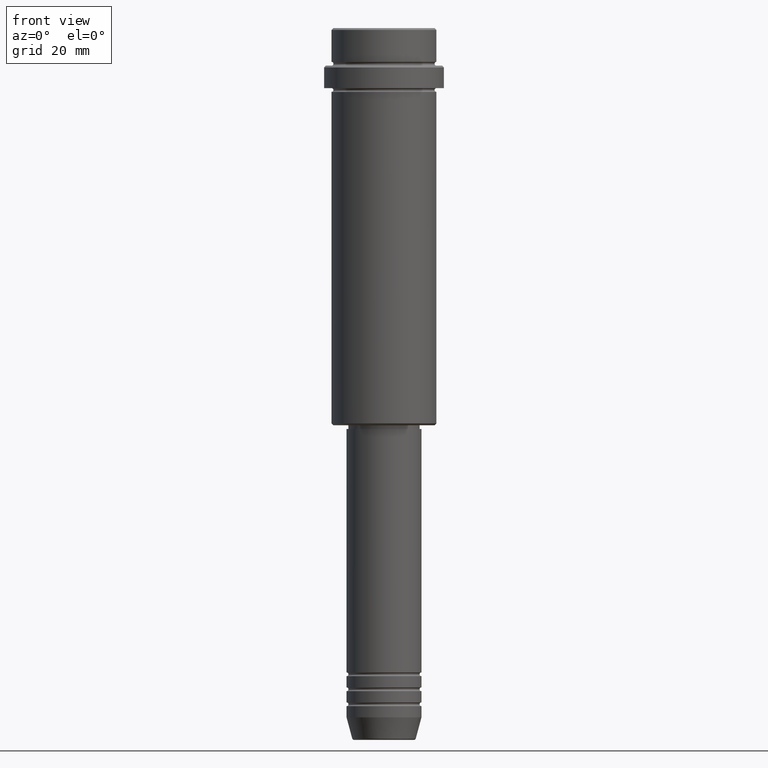
[diagram: clean part render]
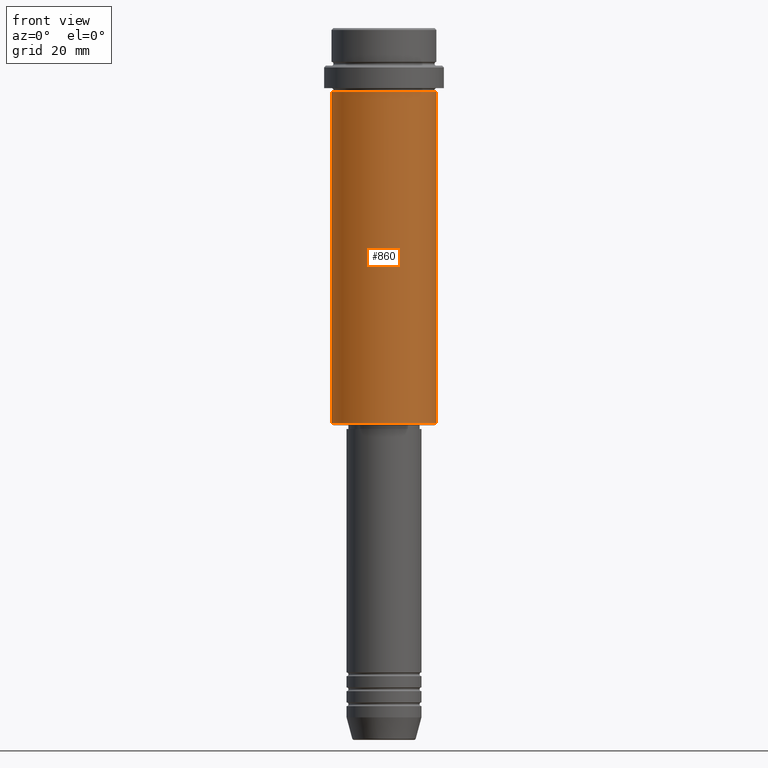
[diagram: same view with one face highlighted and labeled with its STEP entity id]
A machine part, front view. The second image highlights one B-rep face of the part: STEP entity #860.
In plain terms, the highlighted cylindrical surface (partial cylindrical patch) has radius 14 mm, axis along (-0, -0, 1).
Its self-contained STEP definition (entity closure, byte-faithful):
#10 = AXIS2_PLACEMENT_3D ( 'NONE', #302, #505, #203 ) ;
#25 = EDGE_CURVE ( 'NONE', #506, #144, #988, .T. ) ;
#55 = CIRCLE ( 'NONE', #402, 13.99999999999998757 ) ;
#120 = CARTESIAN_POINT ( 'NONE',  ( -13.99999999999997513, 1.714505518806292271E-15, -17.00000000000000355 ) ) ;
#136 = EDGE_CURVE ( 'NONE', #785, #144, #383, .T. ) ;
#144 = VERTEX_POINT ( 'NONE', #1156 ) ;
#178 = CARTESIAN_POINT ( 'NONE',  ( 0.000000000000000000, 0.000000000000000000, -17.00000000000000355 ) ) ;
#191 = DIRECTION ( 'NONE',  ( -0.000000000000000000, -0.000000000000000000, 1.000000000000000000 ) ) ;
#203 = DIRECTION ( 'NONE',  ( 1.000000000000000000, 0.000000000000000000, 0.000000000000000000 ) ) ;
#214 = EDGE_LOOP ( 'NONE', ( #1280, #592, #451, #741 ) ) ;
#225 = CARTESIAN_POINT ( 'NONE',  ( 0.000000000000000000, 0.000000000000000000, -105.4999999999999574 ) ) ;
#243 = VECTOR ( 'NONE', #658, 1000.000000000000000 ) ;
#302 = CARTESIAN_POINT ( 'NONE',  ( 0.000000000000000000, 0.000000000000000000, 0.000000000000000000 ) ) ;
#383 = CIRCLE ( 'NONE', #458, 13.99999999999997513 ) ;
#402 = AXIS2_PLACEMENT_3D ( 'NONE', #225, #1014, #1115 ) ;
#451 = ORIENTED_EDGE ( 'NONE', *, *, #25, .T. ) ;
#458 = AXIS2_PLACEMENT_3D ( 'NONE', #178, #191, #1258 ) ;
#505 = DIRECTION ( 'NONE',  ( -0.000000000000000000, -0.000000000000000000, 1.000000000000000000 ) ) ;
#506 = VERTEX_POINT ( 'NONE', #1305 ) ;
#549 = EDGE_CURVE ( 'NONE', #984, #785, #1409, .T. ) ;
#592 = ORIENTED_EDGE ( 'NONE', *, *, #684, .T. ) ;
#658 = DIRECTION ( 'NONE',  ( -0.000000000000000000, -0.000000000000000000, 1.000000000000000000 ) ) ;
#684 = EDGE_CURVE ( 'NONE', #984, #506, #55, .T. ) ;
#741 = ORIENTED_EDGE ( 'NONE', *, *, #136, .F. ) ;
#785 = VERTEX_POINT ( 'NONE', #120 ) ;
#830 = CYLINDRICAL_SURFACE ( 'NONE', #10, 13.99999999999998757 ) ;
#860 = ADVANCED_FACE ( 'NONE', ( #1037 ), #830, .T. ) ;
#977 = CARTESIAN_POINT ( 'NONE',  ( 13.99999999999998757, 0.000000000000000000, 0.000000000000000000 ) ) ;
#984 = VERTEX_POINT ( 'NONE', #1361 ) ;
#988 = LINE ( 'NONE', #977, #243 ) ;
#1014 = DIRECTION ( 'NONE',  ( -0.000000000000000000, -0.000000000000000000, 1.000000000000000000 ) ) ;
#1037 = FACE_OUTER_BOUND ( 'NONE', #214, .T. ) ;
#1115 = DIRECTION ( 'NONE',  ( -1.000000000000000000, 0.000000000000000000, 0.000000000000000000 ) ) ;
#1156 = CARTESIAN_POINT ( 'NONE',  ( 13.99999999999997513, 0.000000000000000000, -17.00000000000000355 ) ) ;
#1258 = DIRECTION ( 'NONE',  ( 1.000000000000000000, 0.000000000000000000, 0.000000000000000000 ) ) ;
#1280 = ORIENTED_EDGE ( 'NONE', *, *, #549, .F. ) ;
#1293 = DIRECTION ( 'NONE',  ( -0.000000000000000000, -0.000000000000000000, 1.000000000000000000 ) ) ;
#1300 = VECTOR ( 'NONE', #1293, 1000.000000000000000 ) ;
#1305 = CARTESIAN_POINT ( 'NONE',  ( 13.99999999999998757, 0.000000000000000000, -105.4999999999999574 ) ) ;
#1361 = CARTESIAN_POINT ( 'NONE',  ( -13.99999999999998757, 1.714505518806293060E-15, -105.4999999999999574 ) ) ;
#1409 = LINE ( 'NONE', #1416, #1300 ) ;
#1416 = CARTESIAN_POINT ( 'NONE',  ( -13.99999999999998757, 1.714505518806293060E-15, 0.000000000000000000 ) ) ;